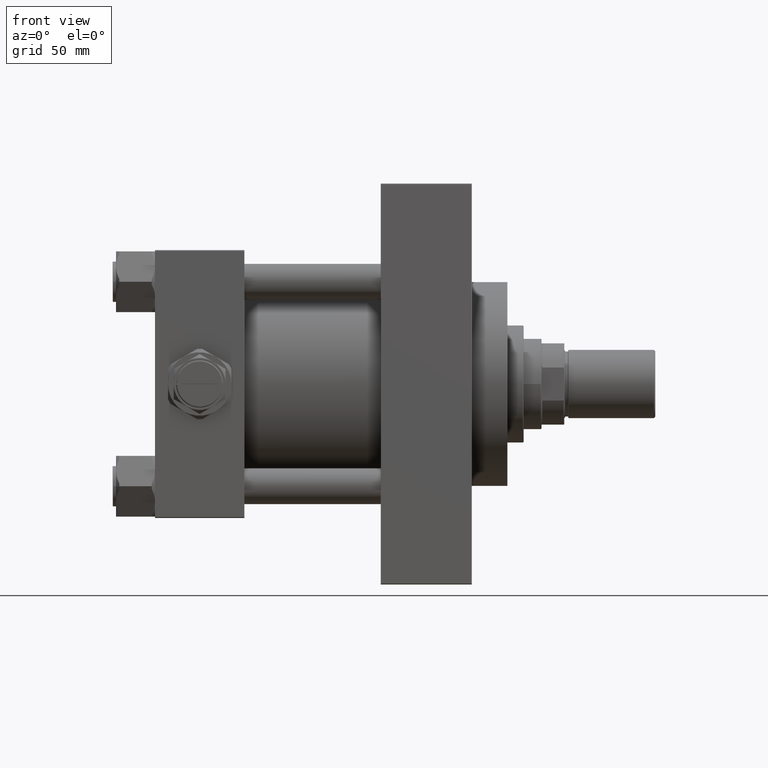
[diagram: clean part render]
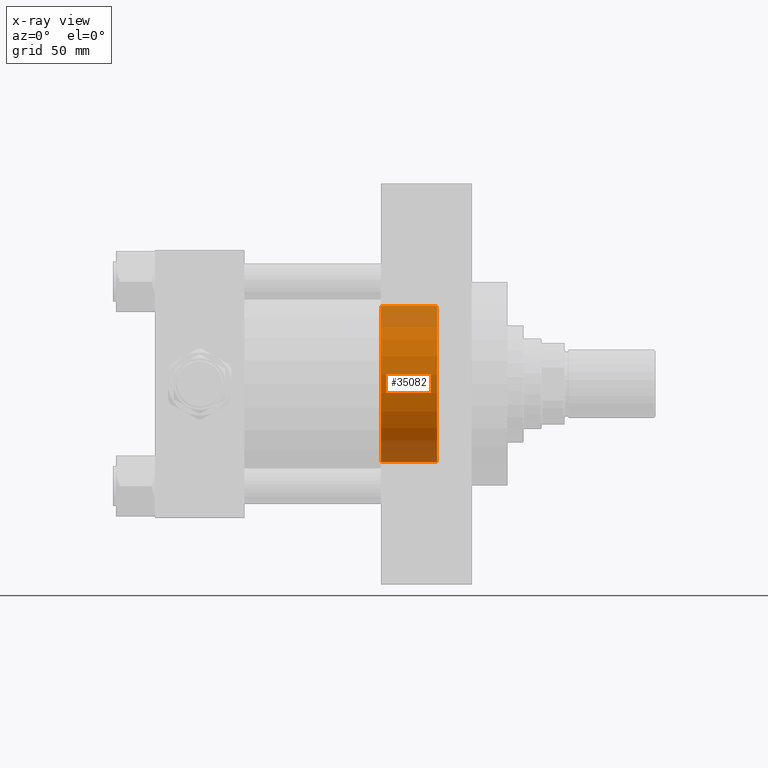
[diagram: x-ray — body ghosted, one internal face saturated and labeled with its STEP entity id]
A machine part, front view, then the same camera in x-ray: the body is ghosted and one INTERNAL B-rep face — a face not visible from any outside direction — is saturated and labeled: STEP entity #35082.
In plain terms, the highlighted cylindrical surface (partial cylindrical patch) has radius 48 mm, axis along (1, 0, 0).
Its self-contained STEP definition (entity closure, byte-faithful):
#1458 = AXIS2_PLACEMENT_3D ( 'NONE', #17427, #30498, #30258 ) ;
#2136 = VERTEX_POINT ( 'NONE', #19560 ) ;
#2968 = ORIENTED_EDGE ( 'NONE', *, *, #31205, .F. ) ;
#3239 = CARTESIAN_POINT ( 'NONE',  ( 173.7400000000000091, 0.000000000000000000, 0.000000000000000000 ) ) ;
#3694 = CIRCLE ( 'NONE', #27105, 48.00000000000000711 ) ;
#6696 = DIRECTION ( 'NONE',  ( 1.000000000000000000, -0.000000000000000000, -0.000000000000000000 ) ) ;
#6878 = ORIENTED_EDGE ( 'NONE', *, *, #33085, .T. ) ;
#7027 = DIRECTION ( 'NONE',  ( 0.000000000000000000, 0.000000000000000000, -1.000000000000000000 ) ) ;
#7939 = AXIS2_PLACEMENT_3D ( 'NONE', #3239, #38601, #7027 ) ;
#13187 = CARTESIAN_POINT ( 'NONE',  ( -80.76450198781715528, 5.878304635907296578E-15, 48.00000000000000711 ) ) ;
#14430 = CARTESIAN_POINT ( 'NONE',  ( 173.7400000000000091, 5.878304635907296578E-15, 48.00000000000000711 ) ) ;
#15250 = DIRECTION ( 'NONE',  ( 0.000000000000000000, 0.000000000000000000, 1.000000000000000000 ) ) ;
#17427 = CARTESIAN_POINT ( 'NONE',  ( -80.76450198781715528, 0.000000000000000000, 0.000000000000000000 ) ) ;
#19560 = CARTESIAN_POINT ( 'NONE',  ( 139.0000000000000000, 5.878304635907296578E-15, 48.00000000000000711 ) ) ;
#20752 = LINE ( 'NONE', #13187, #28468 ) ;
#21470 = CYLINDRICAL_SURFACE ( 'NONE', #1458, 48.00000000000000711 ) ;
#24481 = ORIENTED_EDGE ( 'NONE', *, *, #46405, .T. ) ;
#26621 = CARTESIAN_POINT ( 'NONE',  ( 139.0000000000000000, 0.000000000000000000, 0.000000000000000000 ) ) ;
#26709 = FACE_OUTER_BOUND ( 'NONE', #32687, .T. ) ;
#27105 = AXIS2_PLACEMENT_3D ( 'NONE', #26621, #42532, #15250 ) ;
#27264 = EDGE_CURVE ( 'NONE', #39138, #2136, #3694, .T. ) ;
#28468 = VECTOR ( 'NONE', #35692, 1000.000000000000000 ) ;
#29450 = LINE ( 'NONE', #41311, #39337 ) ;
#30258 = DIRECTION ( 'NONE',  ( 0.000000000000000000, 0.000000000000000000, -1.000000000000000000 ) ) ;
#30498 = DIRECTION ( 'NONE',  ( 1.000000000000000000, -0.000000000000000000, -0.000000000000000000 ) ) ;
#31205 = EDGE_CURVE ( 'NONE', #39138, #36911, #29450, .T. ) ;
#32687 = EDGE_LOOP ( 'NONE', ( #46490, #24481, #6878, #2968 ) ) ;
#33085 = EDGE_CURVE ( 'NONE', #36227, #36911, #40230, .T. ) ;
#35082 = ADVANCED_FACE ( 'NONE', ( #26709 ), #21470, .F. ) ;
#35692 = DIRECTION ( 'NONE',  ( 1.000000000000000000, -0.000000000000000000, -0.000000000000000000 ) ) ;
#36227 = VERTEX_POINT ( 'NONE', #14430 ) ;
#36911 = VERTEX_POINT ( 'NONE', #39489 ) ;
#38601 = DIRECTION ( 'NONE',  ( 1.000000000000000000, 0.000000000000000000, 0.000000000000000000 ) ) ;
#39138 = VERTEX_POINT ( 'NONE', #44747 ) ;
#39337 = VECTOR ( 'NONE', #6696, 1000.000000000000000 ) ;
#39489 = CARTESIAN_POINT ( 'NONE',  ( 173.7400000000000091, 0.000000000000000000, -48.00000000000000711 ) ) ;
#40230 = CIRCLE ( 'NONE', #7939, 48.00000000000000711 ) ;
#41311 = CARTESIAN_POINT ( 'NONE',  ( -80.76450198781715528, 0.000000000000000000, -48.00000000000000711 ) ) ;
#42532 = DIRECTION ( 'NONE',  ( -1.000000000000000000, 0.000000000000000000, -0.000000000000000000 ) ) ;
#44747 = CARTESIAN_POINT ( 'NONE',  ( 139.0000000000000000, 0.000000000000000000, -48.00000000000000711 ) ) ;
#46405 = EDGE_CURVE ( 'NONE', #2136, #36227, #20752, .T. ) ;
#46490 = ORIENTED_EDGE ( 'NONE', *, *, #27264, .T. ) ;